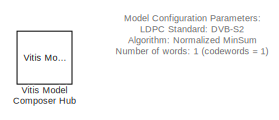
[diagram: root canvas - part 1/2, top left region]
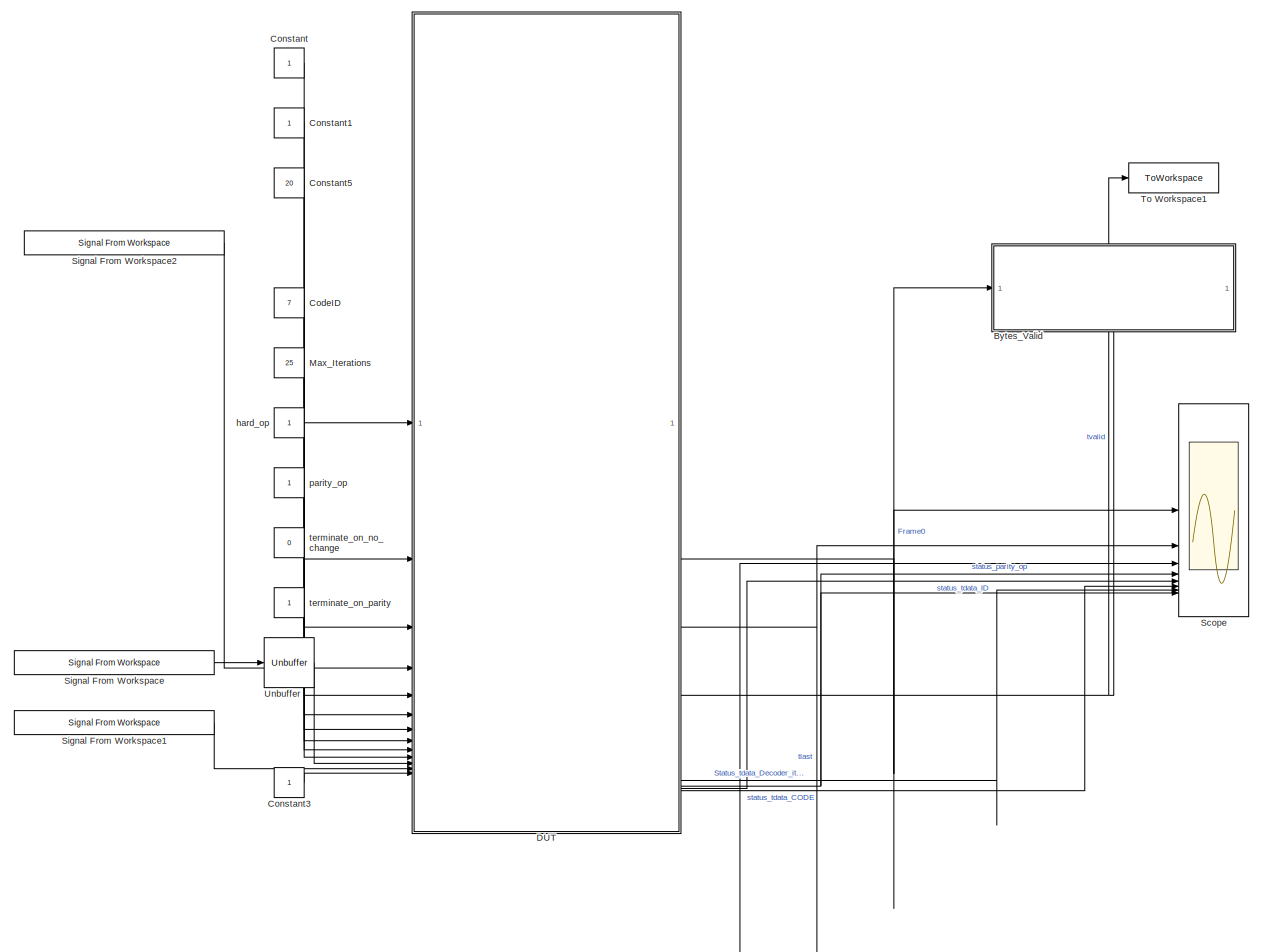
[diagram: root canvas - part 2/2, most of the canvas]
MODEL slx_1c46de50b655
KIND model
CONFIG AbsTol = auto
CONFIG EnableMultiTasking = off
CONFIG FixedStep = auto
CONFIG MaxStep = auto
CONFIG MinStep = auto
CONFIG PostLoadFcn = LDPC_Encoder
CONFIG RelTol = 1e-3
CONFIG SampleTimeConstraint = Unconstrained
CONFIG SolverName = VariableStepAuto
CONFIG StartTime = 0.0
CONFIG StopTime = 64800+64800
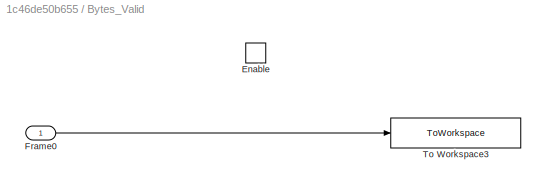
BLOCK [SubSystem] Bytes_Valid
BLOCK [EnablePort] Bytes_Valid/Enable
BLOCK [Inport] Bytes_Valid/Frame0
BLOCK [ToWorkspace] Bytes_Valid/To Workspace3
  FixptAsFi = on
  MaxDataPoints = inf
  SampleTime = -1
  Save2DSignal = 2-D array (concatenate along first dimension)
  VariableName = DecodedBytes
BLOCK [Constant] CodeID
  SampleTime = 1
  Value = 7
BLOCK [Constant] Constant
  SampleTime = 1
BLOCK [Constant] Constant1
  SampleTime = 1
BLOCK [Constant] Constant3
  SampleTime = 1
BLOCK [Constant] Constant5
  SampleTime = 1
  Value = 20
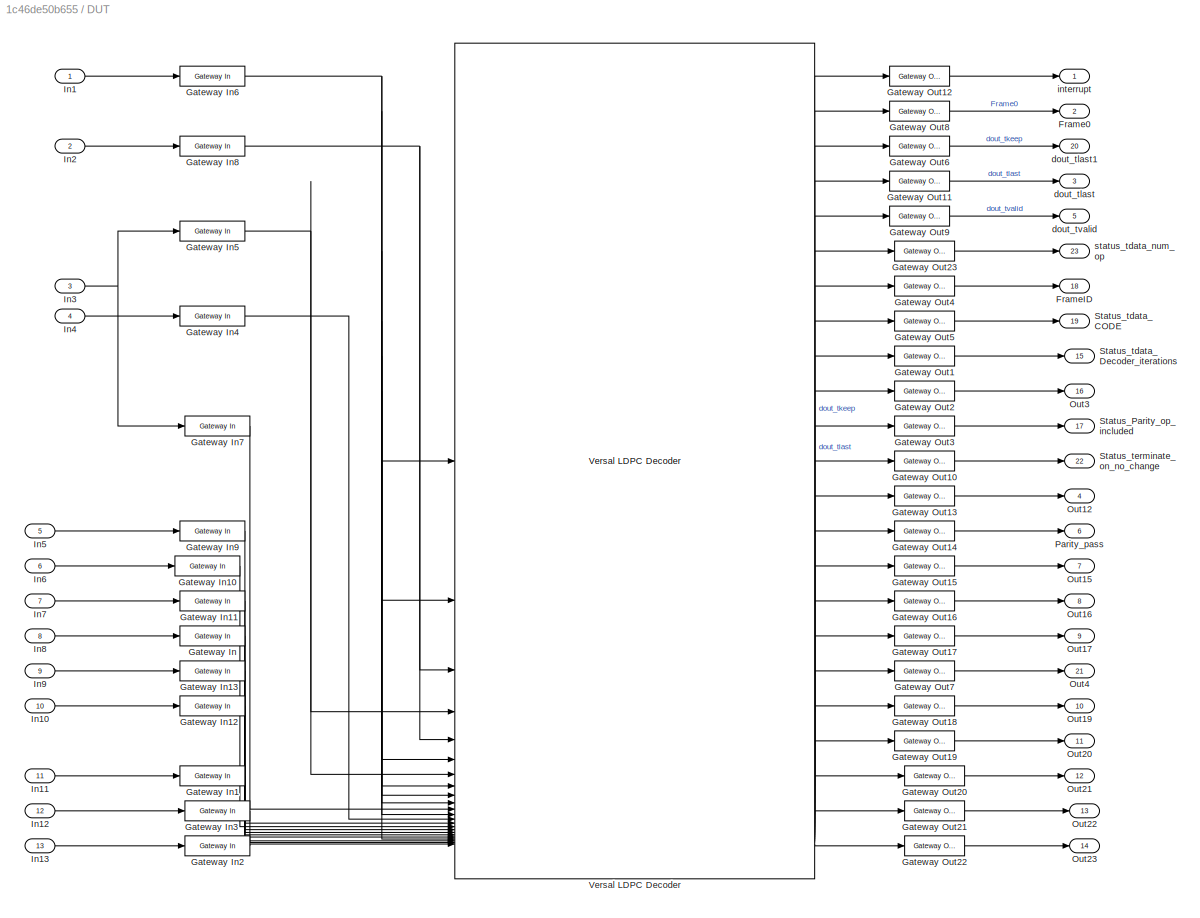
BLOCK [SubSystem] DUT
BLOCK [Outport] DUT/Frame0
  Port = 2
BLOCK [Outport] DUT/FrameID
  Port = 18
BLOCK [Reference] DUT/Gateway In  REF=hdlBasic/Gateway In
  SourceBlock = hdlBasic/Gateway In
  SourceType = Gateway In Block
BLOCK [Reference] DUT/Gateway In1  REF=hdlBasic/Gateway In
  SourceBlock = hdlBasic/Gateway In
  SourceType = Gateway In Block
BLOCK [Reference] DUT/Gateway In10  REF=hdlBasic/Gateway In
  SourceBlock = hdlBasic/Gateway In
  SourceType = Gateway In Block
BLOCK [Reference] DUT/Gateway In11  REF=hdlBasic/Gateway In
  SourceBlock = hdlBasic/Gateway In
  SourceType = Gateway In Block
BLOCK [Reference] DUT/Gateway In12  REF=hdlBasic/Gateway In
  SourceBlock = hdlBasic/Gateway In
  SourceType = Gateway In Block
BLOCK [Reference] DUT/Gateway In13  REF=hdlBasic/Gateway In
  SourceBlock = hdlBasic/Gateway In
  SourceType = Gateway In Block
BLOCK [Reference] DUT/Gateway In2  REF=hdlBasic/Gateway In
  SourceBlock = hdlBasic/Gateway In
  SourceType = Gateway In Block
BLOCK [Reference] DUT/Gateway In3  REF=hdlBasic/Gateway In
  SourceBlock = hdlBasic/Gateway In
  SourceType = Gateway In Block
BLOCK [Reference] DUT/Gateway In4  REF=hdlBasic/Gateway In
  SourceBlock = hdlBasic/Gateway In
  SourceType = Gateway In Block
BLOCK [Reference] DUT/Gateway In5  REF=hdlBasic/Gateway In
  SourceBlock = hdlBasic/Gateway In
  SourceType = Gateway In Block
BLOCK [Reference] DUT/Gateway In6  REF=hdlBasic/Gateway In
  SourceBlock = hdlBasic/Gateway In
  SourceType = Gateway In Block
BLOCK [Reference] DUT/Gateway In7  REF=hdlBasic/Gateway In
  SourceBlock = hdlBasic/Gateway In
  SourceType = Gateway In Block
BLOCK [Reference] DUT/Gateway In8  REF=hdlBasic/Gateway In
  SourceBlock = hdlBasic/Gateway In
  SourceType = Gateway In Block
BLOCK [Reference] DUT/Gateway In9  REF=hdlBasic/Gateway In
  SourceBlock = hdlBasic/Gateway In
  SourceType = Gateway In Block
BLOCK [Reference] DUT/Gateway Out1  REF=hdlBasic/Gateway Out
  SourceBlock = hdlBasic/Gateway Out
  SourceType = Gateway Out Block
BLOCK [Reference] DUT/Gateway Out10  REF=hdlBasic/Gateway Out
  SourceBlock = hdlBasic/Gateway Out
  SourceType = Gateway Out Block
BLOCK [Reference] DUT/Gateway Out11  REF=hdlBasic/Gateway Out
  SourceBlock = hdlBasic/Gateway Out
  SourceType = Gateway Out Block
BLOCK [Reference] DUT/Gateway Out12  REF=hdlBasic/Gateway Out
  SourceBlock = hdlBasic/Gateway Out
  SourceType = Gateway Out Block
BLOCK [Reference] DUT/Gateway Out13  REF=hdlBasic/Gateway Out
  SourceBlock = hdlBasic/Gateway Out
  SourceType = Gateway Out Block
BLOCK [Reference] DUT/Gateway Out14  REF=hdlBasic/Gateway Out
  SourceBlock = hdlBasic/Gateway Out
  SourceType = Gateway Out Block
BLOCK [Reference] DUT/Gateway Out15  REF=hdlBasic/Gateway Out
  SourceBlock = hdlBasic/Gateway Out
  SourceType = Gateway Out Block
BLOCK [Reference] DUT/Gateway Out16  REF=hdlBasic/Gateway Out
  SourceBlock = hdlBasic/Gateway Out
  SourceType = Gateway Out Block
BLOCK [Reference] DUT/Gateway Out17  REF=hdlBasic/Gateway Out
  SourceBlock = hdlBasic/Gateway Out
  SourceType = Gateway Out Block
BLOCK [Reference] DUT/Gateway Out18  REF=hdlBasic/Gateway Out
  SourceBlock = hdlBasic/Gateway Out
  SourceType = Gateway Out Block
BLOCK [Reference] DUT/Gateway Out19  REF=hdlBasic/Gateway Out
  SourceBlock = hdlBasic/Gateway Out
  SourceType = Gateway Out Block
BLOCK [Reference] DUT/Gateway Out2  REF=hdlBasic/Gateway Out
  SourceBlock = hdlBasic/Gateway Out
  SourceType = Gateway Out Block
BLOCK [Reference] DUT/Gateway Out20  REF=hdlBasic/Gateway Out
  SourceBlock = hdlBasic/Gateway Out
  SourceType = Gateway Out Block
BLOCK [Reference] DUT/Gateway Out21  REF=hdlBasic/Gateway Out
  SourceBlock = hdlBasic/Gateway Out
  SourceType = Gateway Out Block
BLOCK [Reference] DUT/Gateway Out22  REF=hdlBasic/Gateway Out
  SourceBlock = hdlBasic/Gateway Out
  SourceType = Gateway Out Block
BLOCK [Reference] DUT/Gateway Out23  REF=hdlBasic/Gateway Out
  SourceBlock = hdlBasic/Gateway Out
  SourceType = Gateway Out Block
BLOCK [Reference] DUT/Gateway Out3  REF=hdlBasic/Gateway Out
  SourceBlock = hdlBasic/Gateway Out
  SourceType = Gateway Out Block
BLOCK [Reference] DUT/Gateway Out4  REF=hdlBasic/Gateway Out
  SourceBlock = hdlBasic/Gateway Out
  SourceType = Gateway Out Block
BLOCK [Reference] DUT/Gateway Out5  REF=hdlBasic/Gateway Out
  SourceBlock = hdlBasic/Gateway Out
  SourceType = Gateway Out Block
BLOCK [Reference] DUT/Gateway Out6  REF=hdlBasic/Gateway Out
  SourceBlock = hdlBasic/Gateway Out
  SourceType = Gateway Out Block
BLOCK [Reference] DUT/Gateway Out7  REF=hdlBasic/Gateway Out
  SourceBlock = hdlBasic/Gateway Out
  SourceType = Gateway Out Block
BLOCK [Reference] DUT/Gateway Out8  REF=hdlBasic/Gateway Out
  SourceBlock = hdlBasic/Gateway Out
  SourceType = Gateway Out Block
BLOCK [Reference] DUT/Gateway Out9  REF=hdlBasic/Gateway Out
  SourceBlock = hdlBasic/Gateway Out
  SourceType = Gateway Out Block
BLOCK [Inport] DUT/In1
BLOCK [Inport] DUT/In10
  Port = 10
BLOCK [Inport] DUT/In11
  Port = 11
BLOCK [Inport] DUT/In12
  Port = 12
BLOCK [Inport] DUT/In13
  Port = 13
BLOCK [Inport] DUT/In2
  Port = 2
BLOCK [Inport] DUT/In3
  Port = 3
BLOCK [Inport] DUT/In4
  Port = 4
BLOCK [Inport] DUT/In5
  Port = 5
BLOCK [Inport] DUT/In6
  Port = 6
BLOCK [Inport] DUT/In7
  Port = 7
BLOCK [Inport] DUT/In8
  Port = 8
BLOCK [Inport] DUT/In9
  Port = 9
BLOCK [Outport] DUT/Out12
  Port = 4
BLOCK [Outport] DUT/Out15
  Port = 7
BLOCK [Outport] DUT/Out16
  Port = 8
BLOCK [Outport] DUT/Out17
  Port = 9
BLOCK [Outport] DUT/Out19
  Port = 10
BLOCK [Outport] DUT/Out20
  Port = 11
BLOCK [Outport] DUT/Out21
  Port = 12
BLOCK [Outport] DUT/Out22
  Port = 13
BLOCK [Outport] DUT/Out23
  Port = 14
BLOCK [Outport] DUT/Out3
  Port = 16
BLOCK [Outport] DUT/Out4
  Port = 21
BLOCK [Outport] DUT/Parity_pass
  Port = 6
BLOCK [Outport] DUT/Status_Parity_op_included
  Port = 17
BLOCK [Outport] DUT/Status_tdata_CODE
  Port = 19
BLOCK [Outport] DUT/Status_tdata_Decoder_iterations
  Port = 15
BLOCK [Outport] DUT/Status_terminate_on_no_change
  Port = 22
BLOCK [Reference] DUT/Versal LDPC Decoder  REF=hdlDSPIP/Versal LDPC Decoder
  SourceBlock = hdlDSPIP/Versal LDPC Decoder
  SourceType = Versal LDPC Decoder
BLOCK [Outport] DUT/dout_tlast
  Port = 3
BLOCK [Outport] DUT/dout_tlast1
  Port = 20
BLOCK [Outport] DUT/dout_tvalid
  Port = 5
BLOCK [Outport] DUT/interrupt
BLOCK [Outport] DUT/status_tdata_num_op
  Port = 23
BLOCK [Constant] Max_Iterations
  SampleTime = 1
  Value = 25
BLOCK [Scope] Scope
  Floating = off
  NumInputPorts = 8
  ScopeSpecificationString = Simulink.scopes.TimeScopeBlockCfg('CurrentConfiguration', extmgr.ConfigurationSet(extmgr.Configuration('Core','General UI',true,'DisplayFullSourceName',false,'ShowMainToolbar',true),extmgr.Configuration('Sources','WiredSimulink',true,'DataLogging',false,'DataLoggingVariableName','ScopeData','DataLoggingLimitDataPoints',false,'DataLoggingMaxPoints','5000','DataLoggingDecimateData',false,'DataLoggin...<+6181ch>
BLOCK [Reference] Signal From Workspace  REF=dspsrcs4/Signal From
Workspace
  SourceBlock = dspsrcs4/Signal From\nWorkspace
  SourceType = Signal From Workspace
BLOCK [Reference] Signal From Workspace1  REF=dspsrcs4/Signal From
Workspace
  SourceBlock = dspsrcs4/Signal From\nWorkspace
  SourceType = Signal From Workspace
BLOCK [Reference] Signal From Workspace2  REF=dspsrcs4/Signal From
Workspace
  SourceBlock = dspsrcs4/Signal From\nWorkspace
  SourceType = Signal From Workspace
BLOCK [ToWorkspace] To Workspace1
  FixptAsFi = on
  MaxDataPoints = inf
  SampleTime = -1
  Save2DSignal = 2-D array (concatenate along first dimension)
  VariableName = tvalid
BLOCK [Unbuffer] Unbuffer
BLOCK [Reference] Vitis Model Composer Hub  REF=vmcUtilities/Vitis Model Composer Hub
  SourceBlock = vmcUtilities/Vitis Model Composer Hub
  SourceType = VMC Hub
  Tag = genX
  UserDataPersistent = on
BLOCK [Constant] hard_op
  SampleTime = 1
BLOCK [Constant] parity_op
  SampleTime = 1
BLOCK [Constant] terminate_on_no_change
  SampleTime = 1
  Value = 0
BLOCK [Constant] terminate_on_parity
  SampleTime = 1
ANNOTATION (root): Model Configuration Parameters: LDPC Standard : DVB-S2 Algorithm: Normalized MinSum Number of words : 1 (codewords = 1)
LINE Bytes_Valid/Frame0:1 -> Bytes_Valid/To Workspace3:1
LINE CodeID:1 -> DUT:5
LINE Constant1:1 -> DUT:2
LINE Constant3:1 -> DUT:13
LINE Constant5:1 -> DUT:3
LINE Constant:1 -> DUT:1
LINE DUT/Gateway In10:1 -> DUT/Versal LDPC Decoder:15
LINE DUT/Gateway In11:1 -> DUT/Versal LDPC Decoder:16
LINE DUT/Gateway In12:1 -> DUT/Versal LDPC Decoder:19
LINE DUT/Gateway In13:1 -> DUT/Versal LDPC Decoder:18
LINE DUT/Gateway In1:1 -> DUT/Versal LDPC Decoder:21
LINE DUT/Gateway In2:1 -> DUT/Versal LDPC Decoder:23
LINE DUT/Gateway In3:1 -> DUT/Versal LDPC Decoder:22
LINE DUT/Gateway In4:1 -> DUT/Versal LDPC Decoder:13
NET DUT/Gateway In5:1 -> DUT/Versal LDPC Decoder:4, DUT/Versal LDPC Decoder:7
NET DUT/Gateway In6:1 -> DUT/Versal LDPC Decoder:1, DUT/Versal LDPC Decoder:10, DUT/Versal LDPC Decoder:12, DUT/Versal LDPC Decoder:2, DUT/Versal LDPC Decoder:20, DUT/Versal LDPC Decoder:6, DUT/Versal LDPC Decoder:8, DUT/Versal LDPC Decoder:9
LINE DUT/Gateway In7:1 -> DUT/Versal LDPC Decoder:11
NET DUT/Gateway In8:1 -> DUT/Versal LDPC Decoder:3, DUT/Versal LDPC Decoder:5
LINE DUT/Gateway In9:1 -> DUT/Versal LDPC Decoder:14
LINE DUT/Gateway In:1 -> DUT/Versal LDPC Decoder:17
LINE DUT/Gateway Out10:1 -> DUT/Status_terminate_on_no_change:1
LINE DUT/Gateway Out11:1 -> DUT/dout_tlast:1
LINE DUT/Gateway Out12:1 -> DUT/interrupt:1
LINE DUT/Gateway Out13:1 -> DUT/Out12:1
LINE DUT/Gateway Out14:1 -> DUT/Parity_pass:1
LINE DUT/Gateway Out15:1 -> DUT/Out15:1
LINE DUT/Gateway Out16:1 -> DUT/Out16:1
LINE DUT/Gateway Out17:1 -> DUT/Out17:1
LINE DUT/Gateway Out18:1 -> DUT/Out19:1
LINE DUT/Gateway Out19:1 -> DUT/Out20:1
LINE DUT/Gateway Out1:1 -> DUT/Status_tdata_Decoder_iterations:1
LINE DUT/Gateway Out20:1 -> DUT/Out21:1
LINE DUT/Gateway Out21:1 -> DUT/Out22:1
LINE DUT/Gateway Out22:1 -> DUT/Out23:1
LINE DUT/Gateway Out23:1 -> DUT/status_tdata_num_op:1
LINE DUT/Gateway Out2:1 -> DUT/Out3:1
LINE DUT/Gateway Out3:1 -> DUT/Status_Parity_op_included:1
LINE DUT/Gateway Out4:1 -> DUT/FrameID:1
LINE DUT/Gateway Out5:1 -> DUT/Status_tdata_CODE:1
LINE DUT/Gateway Out6:1 -> DUT/dout_tlast1:1
LINE DUT/Gateway Out7:1 -> DUT/Out4:1
LINE DUT/Gateway Out8:1 -> DUT/Frame0:1
LINE DUT/Gateway Out9:1 -> DUT/dout_tvalid:1
LINE DUT/In10:1 -> DUT/Gateway In12:1
LINE DUT/In11:1 -> DUT/Gateway In1:1
LINE DUT/In12:1 -> DUT/Gateway In3:1
LINE DUT/In13:1 -> DUT/Gateway In2:1
LINE DUT/In1:1 -> DUT/Gateway In6:1
LINE DUT/In2:1 -> DUT/Gateway In8:1
NET DUT/In3:1 -> DUT/Gateway In5:1, DUT/Gateway In7:1
LINE DUT/In4:1 -> DUT/Gateway In4:1
LINE DUT/In5:1 -> DUT/Gateway In9:1
LINE DUT/In6:1 -> DUT/Gateway In10:1
LINE DUT/In7:1 -> DUT/Gateway In11:1
LINE DUT/In8:1 -> DUT/Gateway In:1
LINE DUT/In9:1 -> DUT/Gateway In13:1
LINE DUT/Versal LDPC Decoder:1 -> DUT/Gateway Out12:1
LINE DUT/Versal LDPC Decoder:10 -> DUT/Gateway Out2:1
LINE DUT/Versal LDPC Decoder:11 -> DUT/Gateway Out3:1
LINE DUT/Versal LDPC Decoder:12 -> DUT/Gateway Out10:1
LINE DUT/Versal LDPC Decoder:13 -> DUT/Gateway Out13:1
LINE DUT/Versal LDPC Decoder:14 -> DUT/Gateway Out14:1
LINE DUT/Versal LDPC Decoder:15 -> DUT/Gateway Out15:1
LINE DUT/Versal LDPC Decoder:16 -> DUT/Gateway Out16:1
LINE DUT/Versal LDPC Decoder:17 -> DUT/Gateway Out17:1
LINE DUT/Versal LDPC Decoder:18 -> DUT/Gateway Out7:1
LINE DUT/Versal LDPC Decoder:19 -> DUT/Gateway Out18:1
LINE DUT/Versal LDPC Decoder:2 -> DUT/Gateway Out8:1
LINE DUT/Versal LDPC Decoder:20 -> DUT/Gateway Out19:1
LINE DUT/Versal LDPC Decoder:21 -> DUT/Gateway Out20:1
LINE DUT/Versal LDPC Decoder:22 -> DUT/Gateway Out21:1
LINE DUT/Versal LDPC Decoder:23 -> DUT/Gateway Out22:1
LINE DUT/Versal LDPC Decoder:3 -> DUT/Gateway Out6:1
LINE DUT/Versal LDPC Decoder:4 -> DUT/Gateway Out11:1
LINE DUT/Versal LDPC Decoder:5 -> DUT/Gateway Out9:1
LINE DUT/Versal LDPC Decoder:6 -> DUT/Gateway Out23:1
LINE DUT/Versal LDPC Decoder:7 -> DUT/Gateway Out4:1
LINE DUT/Versal LDPC Decoder:8 -> DUT/Gateway Out5:1
LINE DUT/Versal LDPC Decoder:9 -> DUT/Gateway Out1:1
LINE DUT:15 -> Scope:7
NET DUT:17 -> Scope:4, Scope:8
LINE DUT:18 -> Scope:5
LINE DUT:19 -> Scope:6
NET DUT:2 -> Bytes_Valid:1, Scope:1
LINE DUT:3 -> Scope:2
NET DUT:5 -> Bytes_Valid:enable, Scope:3, To Workspace1:1
LINE Max_Iterations:1 -> DUT:6
LINE Signal From Workspace1:1 -> DUT:12
LINE Signal From Workspace2:1 -> DUT:4
LINE Signal From Workspace:1 -> Unbuffer:1
LINE Unbuffer:1 -> DUT:11
LINE hard_op:1 -> DUT:7
LINE parity_op:1 -> DUT:8
LINE terminate_on_no_change:1 -> DUT:9
LINE terminate_on_parity:1 -> DUT:10
note: NET lines group one-source signal fan-out (src -> all destinations, sorted); 1:1 wires keep LINE
